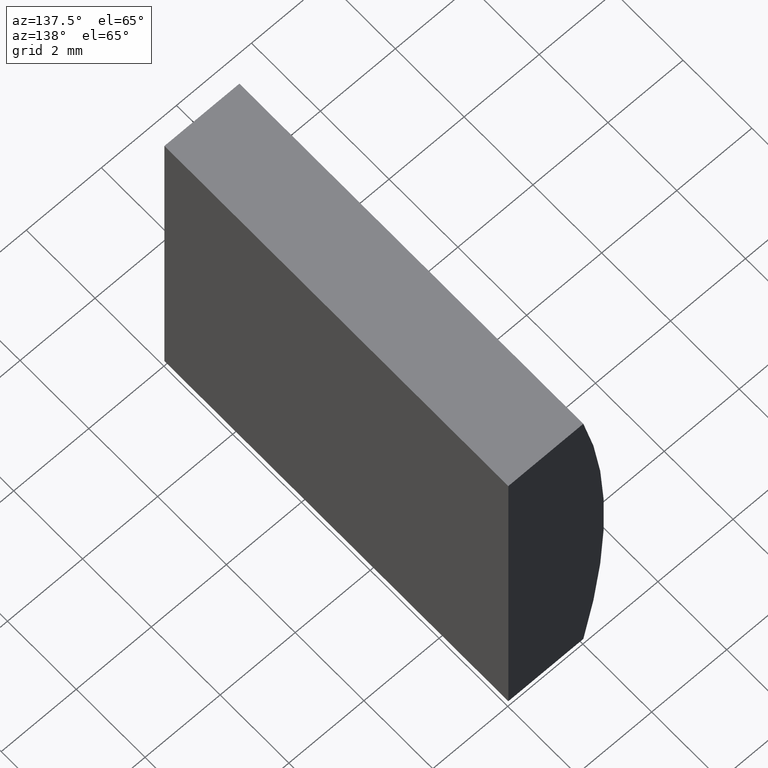
[diagram: clean part render]
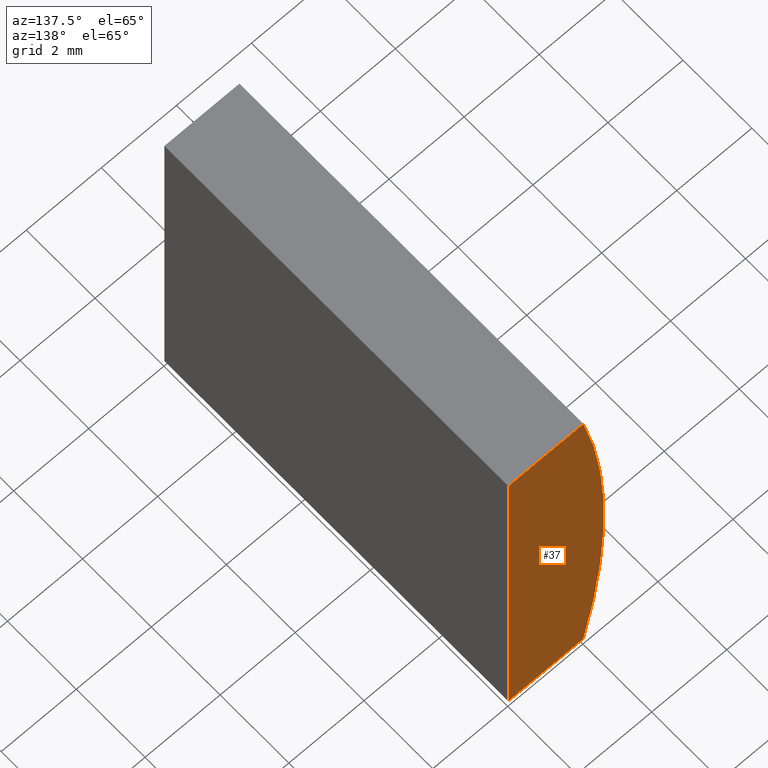
[diagram: same view with one face highlighted and labeled with its STEP entity id]
A machine part, auxiliary view. The second image highlights one B-rep face of the part: STEP entity #37.
In plain terms, the highlighted planar face has unit normal (0, 1, 0).
Its self-contained STEP definition (entity closure, byte-faithful):
#4 = ORIENTED_EDGE ( 'NONE', *, *, #56, .T. ) ;
#13 = VERTEX_POINT ( 'NONE', #65 ) ;
#22 = CARTESIAN_POINT ( 'NONE',  ( -18.01277277529439400, 10.00000000000000000, -5.000000000000000000 ) ) ;
#23 = CARTESIAN_POINT ( 'NONE',  ( -16.01479566514873600, 10.00000000000000000, 5.000000000000000000 ) ) ;
#31 = VERTEX_POINT ( 'NONE', #33 ) ;
#33 = CARTESIAN_POINT ( 'NONE',  ( -18.01277277529439400, 10.00000000000000000, 5.000000000000000000 ) ) ;
#35 = EDGE_LOOP ( 'NONE', ( #140, #198, #197, #4 ) ) ;
#37 = ADVANCED_FACE ( 'NONE', ( #102 ), #112, .T. ) ;
#39 = LINE ( 'NONE', #192, #158 ) ;
#56 = EDGE_CURVE ( 'NONE', #13, #155, #200, .T. ) ;
#58 = AXIS2_PLACEMENT_3D ( 'NONE', #180, #194, #151 ) ;
#65 = CARTESIAN_POINT ( 'NONE',  ( -16.01479566514873900, 10.00000000000000000, -4.999999999999998200 ) ) ;
#68 = VECTOR ( 'NONE', #154, 1000.000000000000000 ) ;
#79 = CARTESIAN_POINT ( 'NONE',  ( -16.01479566514873900, 10.00000000000000000, -4.999999999999998200 ) ) ;
#83 = CARTESIAN_POINT ( 'NONE',  ( -18.01277277529439400, 10.00000000000000000, -5.000000000000000000 ) ) ;
#89 = DIRECTION ( 'NONE',  ( 0.0000000000000000000, 1.000000000000000000, 0.0000000000000000000 ) ) ;
#102 = FACE_OUTER_BOUND ( 'NONE', #35, .T. ) ;
#104 = VERTEX_POINT ( 'NONE', #23 ) ;
#106 = EDGE_CURVE ( 'NONE', #31, #104, #39, .T. ) ;
#108 = VECTOR ( 'NONE', #179, 1000.000000000000000 ) ;
#110 = CARTESIAN_POINT ( 'NONE',  ( 4.355204334851265500, 10.00000000000000000, 4.286263797015675000E-017 ) ) ;
#112 = PLANE ( 'NONE',  #58 ) ;
#140 = ORIENTED_EDGE ( 'NONE', *, *, #182, .T. ) ;
#147 = DIRECTION ( 'NONE',  ( 1.000000000000000000, 0.0000000000000000000, 0.0000000000000000000 ) ) ;
#148 = CIRCLE ( 'NONE', #172, 22.92000000000000200 ) ;
#151 = DIRECTION ( 'NONE',  ( 0.0000000000000000000, -0.0000000000000000000, 1.000000000000000000 ) ) ;
#154 = DIRECTION ( 'NONE',  ( -3.469446951953614700E-016, -0.0000000000000000000, -1.000000000000000000 ) ) ;
#155 = VERTEX_POINT ( 'NONE', #22 ) ;
#158 = VECTOR ( 'NONE', #147, 1000.000000000000000 ) ;
#172 = AXIS2_PLACEMENT_3D ( 'NONE', #110, #89, #177 ) ;
#177 = DIRECTION ( 'NONE',  ( 0.0000000000000000000, 0.0000000000000000000, 1.000000000000000000 ) ) ;
#178 = EDGE_CURVE ( 'NONE', #104, #13, #199, .T. ) ;
#179 = DIRECTION ( 'NONE',  ( -1.000000000000000000, -0.0000000000000000000, -8.682399148458433600E-016 ) ) ;
#180 = CARTESIAN_POINT ( 'NONE',  ( 4.355204334851265500, 10.00000000000000000, 4.286263797015675000E-017 ) ) ;
#182 = EDGE_CURVE ( 'NONE', #155, #31, #148, .T. ) ;
#192 = CARTESIAN_POINT ( 'NONE',  ( -18.01277277529439400, 10.00000000000000000, 5.000000000000000000 ) ) ;
#194 = DIRECTION ( 'NONE',  ( 0.0000000000000000000, 1.000000000000000000, 0.0000000000000000000 ) ) ;
#197 = ORIENTED_EDGE ( 'NONE', *, *, #178, .T. ) ;
#198 = ORIENTED_EDGE ( 'NONE', *, *, #106, .T. ) ;
#199 = LINE ( 'NONE', #79, #68 ) ;
#200 = LINE ( 'NONE', #83, #108 ) ;